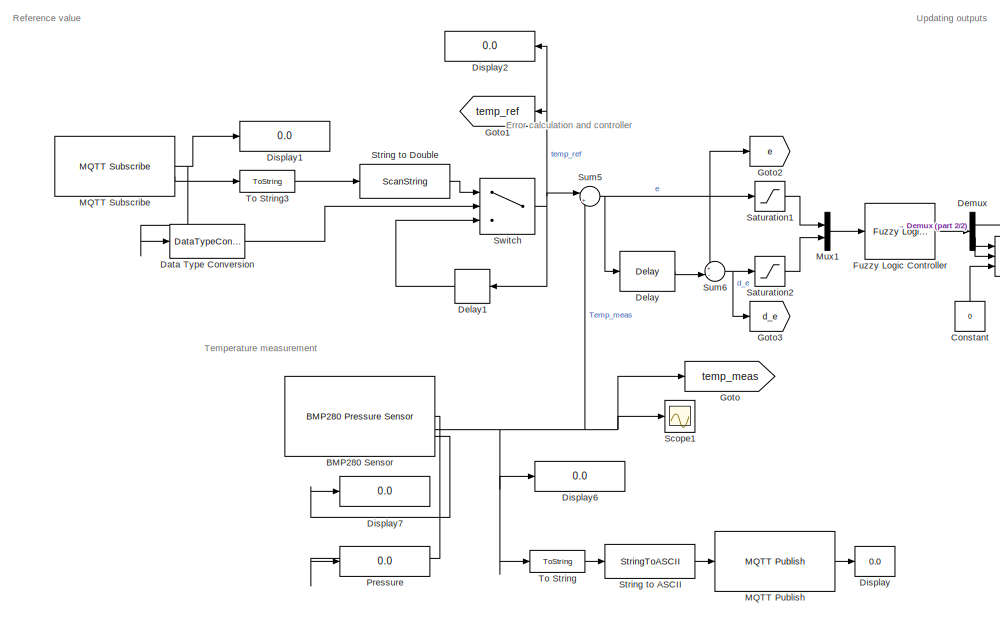
[diagram: root canvas - part 1/2, left side, full height]
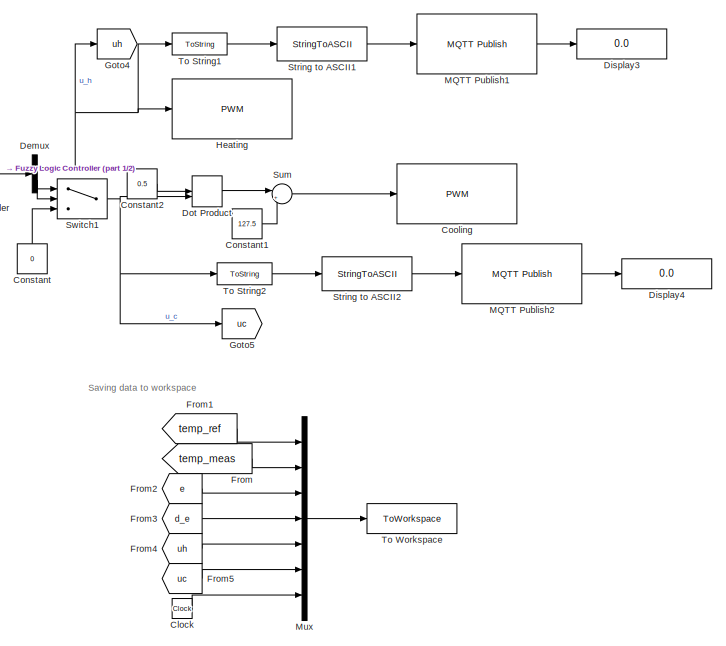
[diagram: root canvas - part 2/2, right side, full height]
MODEL slx_eca613d4b8b9
KIND model
CONFIG AbsTol = auto
CONFIG EnableMultiTasking = on
CONFIG FixedStep = 0.5
CONFIG InitFcn = rules_fuzzy_e_de=readfis('rules_fuzzy_e_de.fis');
CONFIG MaxStep = auto
CONFIG MinStep = auto
CONFIG RelTol = 1e-3
CONFIG SampleTimeConstraint = Unconstrained
CONFIG SolverName = ode3
CONFIG StartTime = 0.0
CONFIG StopTime = 10
BLOCK [Reference] BMP280 Sensor  REF=raspberrypienvironmentalsensorslib/BMP280 Pressure Sensor
  SourceBlock = raspberrypienvironmentalsensorslib/BMP280 Pressure Sensor
  SourceType = sensors.raspberrypi.BMP280Block
BLOCK [Clock] Clock
BLOCK [Constant] Constant
  NameLocation = right
  Value = 0
BLOCK [Constant] Constant1
  Value = 127.5
BLOCK [Constant] Constant2
  Value = 0.5
BLOCK [Reference] Cooling  REF=raspberrypiBasiclib/PWM
  SourceBlock = raspberrypiBasiclib/PWM
  SourceType = raspi.internal.PWMBlock
BLOCK [DataTypeConversion] Data Type Conversion
  RndMeth = Floor
  SaturateOnIntegerOverflow = off
BLOCK [Delay] Delay
  DelayLength = 5
  InputPortMap = u0
  InputProcessing = Columns as channels (frame based)
  SampleTime = 1
BLOCK [Delay] Delay1
  DelayLength = 1
  InitialCondition = 22
  InputPortMap = u0
  NameLocation = top
BLOCK [Demux] Demux
  Outputs = 2
BLOCK [Display] Display
  Decimation = 1
BLOCK [Display] Display1
  Decimation = 1
BLOCK [Display] Display2
  Decimation = 1
  NameLocation = top
BLOCK [Display] Display3
  Decimation = 1
BLOCK [Display] Display4
  Decimation = 1
BLOCK [Display] Display6
  Decimation = 1
BLOCK [Display] Display7
  Decimation = 1
BLOCK [DotProduct] Dot Product
  OutDataTypeStr = Inherit: Inherit via internal rule
BLOCK [From] From
  GotoTag = temp_meas
BLOCK [From] From1
  GotoTag = temp_ref
BLOCK [From] From2
  GotoTag = e
BLOCK [From] From3
  GotoTag = d_e
BLOCK [From] From4
  GotoTag = uh
BLOCK [From] From5
  GotoTag = uc
BLOCK [Reference] Fuzzy Logic Controller  REF=fuzblock/Fuzzy Logic   (lib defined in mdl_858b3b3e7478)
Controller
  SourceBlock = fuzblock/Fuzzy Logic \nController
  SourceType = Fuzzy Inference System
BLOCK [Goto] Goto
  GotoTag = temp_meas
BLOCK [Goto] Goto1
  GotoTag = temp_ref
  NameLocation = top
BLOCK [Goto] Goto2
  GotoTag = e
BLOCK [Goto] Goto3
  GotoTag = d_e
BLOCK [Goto] Goto4
  GotoTag = uh
BLOCK [Goto] Goto5
  GotoTag = uc
BLOCK [Reference] Heating  REF=raspberrypiBasiclib/PWM
  SourceBlock = raspberrypiBasiclib/PWM
  SourceType = raspi.internal.PWMBlock
BLOCK [Reference] MQTT Publish  REF=raspberrypiIOTlib/MQTT Publish
  SourceBlock = raspberrypiIOTlib/MQTT Publish
  SourceType = codertarget.raspi.internal.RaspiMQTTPublish
BLOCK [Reference] MQTT Publish1  REF=raspberrypiIOTlib/MQTT Publish
  SourceBlock = raspberrypiIOTlib/MQTT Publish
  SourceType = codertarget.raspi.internal.RaspiMQTTPublish
BLOCK [Reference] MQTT Publish2  REF=raspberrypiIOTlib/MQTT Publish
  SourceBlock = raspberrypiIOTlib/MQTT Publish
  SourceType = codertarget.raspi.internal.RaspiMQTTPublish
BLOCK [Reference] MQTT Subscribe  REF=raspberrypiIOTlib/MQTT Subscribe
  SourceBlock = raspberrypiIOTlib/MQTT Subscribe
  SourceType = codertarget.raspi.internal.RaspiMQTTSubscribe
BLOCK [Mux] Mux
  DisplayOption = bar
  Inputs = 7
BLOCK [Mux] Mux1
  DisplayOption = bar
  Inputs = 2
BLOCK [Display] Pressure
  Decimation = 1
BLOCK [Saturate] Saturation1
  LowerLimit = -5
  UpperLimit = 5
BLOCK [Saturate] Saturation2
  LowerLimit = -0.1
  UpperLimit = 0.1
BLOCK [Scope] Scope1
  Floating = off
  NumInputPorts = 1
  ScopeSpecificationString = Simulink.scopes.TimeScopeBlockCfg('CurrentConfiguration', extmgr.ConfigurationSet(extmgr.Configuration('Core','General UI',true),extmgr.Configuration('Core','Source UI',true),extmgr.Configuration('Sources','WiredSimulink',true,'DataLoggingVariableName','ScopeData1'),extmgr.Configuration('Visuals','Time Domain',true,'SerializedDisplays',{struct('MinYLimReal','22.39911','MaxYLimReal','22.50097','YLa...<+1467ch>
BLOCK [StringToASCII] String to ASCII
BLOCK [StringToASCII] String to ASCII1
BLOCK [StringToASCII] String to ASCII2
BLOCK [ScanString] String to Double
  Format = "%lf"
BLOCK [Sum] Sum
  Inputs = |++
BLOCK [Sum] Sum5
  Inputs = |+-
BLOCK [Sum] Sum6
  Inputs = +-|
BLOCK [Switch] Switch
  Criteria = u2 > Threshold
  InputSameDT = off
  SaturateOnIntegerOverflow = off
BLOCK [Switch] Switch1
  Criteria = u2 > Threshold
  InputSameDT = off
  SaturateOnIntegerOverflow = off
  Threshold = 1
BLOCK [ToString] To String
BLOCK [ToString] To String1
BLOCK [ToString] To String2
BLOCK [ToString] To String3
BLOCK [ToWorkspace] To Workspace
  FixptAsFi = on
  MaxDataPoints = inf
  SampleTime = 1
  VariableName = simout
ANNOTATION (root): Error calculation and controller
ANNOTATION (root): Reference value
ANNOTATION (root): Saving data to workspace
ANNOTATION (root): Temperature measurement
ANNOTATION (root): Updating outputs
LINE BMP280 Sensor:1 -> Pressure:1
NET BMP280 Sensor:2 -> Display6:1, Goto:1, Scope1:1, Sum5:2, To String:1
LINE BMP280 Sensor:3 -> Display7:1
LINE Clock:1 -> Mux:7
LINE Constant1:1 -> Sum:2
LINE Constant2:1 -> Dot Product:1
LINE Constant:1 -> Switch1:3
LINE Data Type Conversion:1 -> Switch:2
LINE Delay1:1 -> Switch:3
LINE Delay:1 -> Sum6:2
NET Demux:1 -> Goto4:1, Heating:1, To String1:1
NET Demux:2 -> Switch1:1, Switch1:2
LINE Dot Product:1 -> Sum:1
LINE From1:1 -> Mux:1
LINE From2:1 -> Mux:3
LINE From3:1 -> Mux:4
LINE From4:1 -> Mux:5
LINE From5:1 -> Mux:6
LINE From:1 -> Mux:2
LINE Fuzzy Logic Controller:1 -> Demux:1
LINE MQTT Publish1:1 -> Display3:1
LINE MQTT Publish2:1 -> Display4:1
LINE MQTT Publish:1 -> Display:1
NET MQTT Subscribe:1 -> Data Type Conversion:1, Display1:1
LINE MQTT Subscribe:2 -> To String3:1
LINE Mux1:1 -> Fuzzy Logic Controller:1
LINE Mux:1 -> To Workspace:1
LINE Saturation1:1 -> Mux1:1
LINE Saturation2:1 -> Mux1:2
LINE String to ASCII1:1 -> MQTT Publish1:1
LINE String to ASCII2:1 -> MQTT Publish2:1
LINE String to ASCII:1 -> MQTT Publish:1
LINE String to Double:1 -> Switch:1
NET Sum5:1 -> Delay:1, Goto2:1, Saturation1:1, Sum6:1
NET Sum6:1 -> Goto3:1, Saturation2:1
LINE Sum:1 -> Cooling:1
NET Switch1:1 -> Dot Product:2, Goto5:1, To String2:1
NET Switch:1 -> Delay1:1, Display2:1, Goto1:1, Sum5:1
LINE To String1:1 -> String to ASCII1:1
LINE To String2:1 -> String to ASCII2:1
LINE To String3:1 -> String to Double:1
LINE To String:1 -> String to ASCII:1
note: NET lines group one-source signal fan-out (src -> all destinations, sorted); 1:1 wires keep LINE
